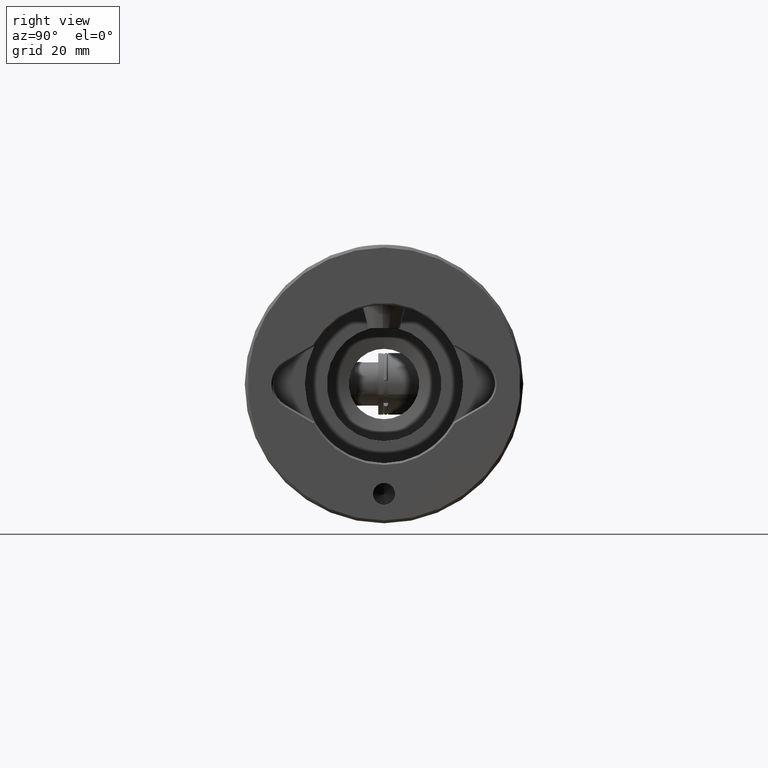
[diagram: clean part render]
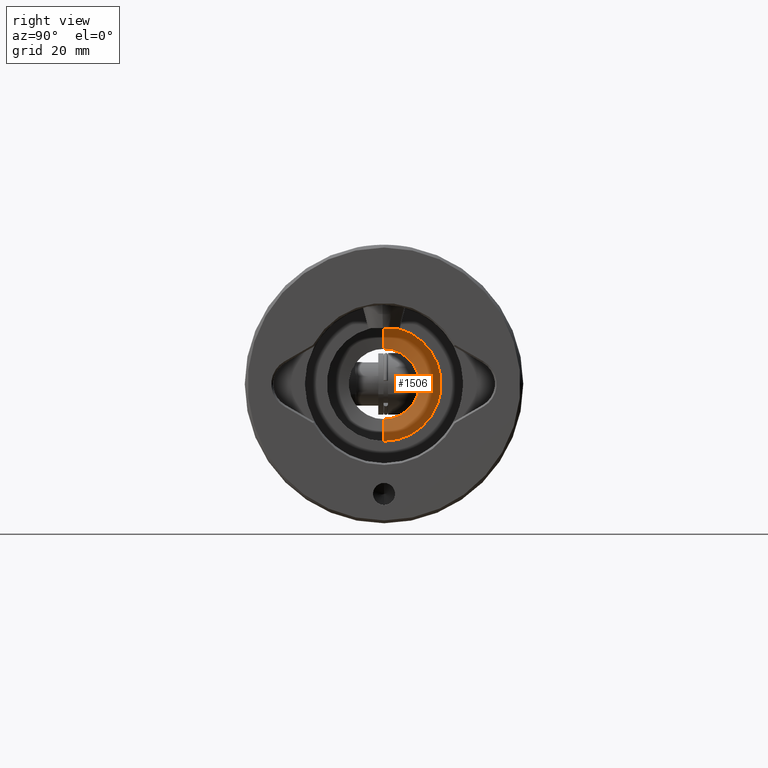
[diagram: same view with one face highlighted and labeled with its STEP entity id]
A machine part, right view. The second image highlights one B-rep face of the part: STEP entity #1506.
In plain terms, the highlighted conical surface has half-angle 77 deg.
Its self-contained STEP definition (entity closure, byte-faithful):
#104 = DIRECTION ( 'NONE',  ( -0.9743700647852351300, 0.0000000000000000000, -0.2249510543438648900 ) ) ;
#110 = DIRECTION ( 'NONE',  ( 0.0000000000000000000, 0.0000000000000000000, -1.000000000000000000 ) ) ;
#192 = DIRECTION ( 'NONE',  ( 0.0000000000000000000, 0.0000000000000000000, -1.000000000000000000 ) ) ;
#472 = CARTESIAN_POINT ( 'NONE',  ( -12.99999999999998400, 0.0000000000000000000, 75.00000000000000000 ) ) ;
#477 = CARTESIAN_POINT ( 'NONE',  ( 0.0000000000000000000, 0.0000000000000000000, 76.15434095562781600 ) ) ;
#548 = ORIENTED_EDGE ( 'NONE', *, *, #3274, .T. ) ;
#616 = ORIENTED_EDGE ( 'NONE', *, *, #3835, .F. ) ;
#638 = DIRECTION ( 'NONE',  ( -1.000000000000000000, 0.0000000000000000000, 0.0000000000000000000 ) ) ;
#740 = VERTEX_POINT ( 'NONE', #2196 ) ;
#1051 = VERTEX_POINT ( 'NONE', #1207 ) ;
#1207 = CARTESIAN_POINT ( 'NONE',  ( -12.99999999999998400, 0.0000000000000000000, 75.00000000000000000 ) ) ;
#1275 = DIRECTION ( 'NONE',  ( -1.000000000000000000, 0.0000000000000000000, 0.0000000000000000000 ) ) ;
#1436 = CARTESIAN_POINT ( 'NONE',  ( 12.99999999999998400, 1.592040838891557100E-015, 75.00000000000000000 ) ) ;
#1506 = ADVANCED_FACE ( 'NONE', ( #4571 ), #4391, .F. ) ;
#1671 = DIRECTION ( 'NONE',  ( 0.0000000000000000000, 0.0000000000000000000, -1.000000000000000000 ) ) ;
#1918 = ORIENTED_EDGE ( 'NONE', *, *, #3097, .F. ) ;
#1945 = AXIS2_PLACEMENT_3D ( 'NONE', #3156, #1671, #3142 ) ;
#2096 = EDGE_LOOP ( 'NONE', ( #1918, #616, #2142, #548 ) ) ;
#2142 = ORIENTED_EDGE ( 'NONE', *, *, #2154, .T. ) ;
#2154 = EDGE_CURVE ( 'NONE', #2856, #1051, #4322, .T. ) ;
#2196 = CARTESIAN_POINT ( 'NONE',  ( 12.99999999999998400, 1.592040838891557100E-015, 75.00000000000000000 ) ) ;
#2285 = VECTOR ( 'NONE', #104, 1000.000000000000100 ) ;
#2393 = VECTOR ( 'NONE', #4104, 1000.000000000000100 ) ;
#2683 = AXIS2_PLACEMENT_3D ( 'NONE', #2938, #192, #638 ) ;
#2856 = VERTEX_POINT ( 'NONE', #4723 ) ;
#2938 = CARTESIAN_POINT ( 'NONE',  ( 0.0000000000000000000, 0.0000000000000000000, 75.00000000000000000 ) ) ;
#3097 = EDGE_CURVE ( 'NONE', #4742, #740, #3518, .T. ) ;
#3142 = DIRECTION ( 'NONE',  ( -1.000000000000000000, 0.0000000000000000000, 0.0000000000000000000 ) ) ;
#3156 = CARTESIAN_POINT ( 'NONE',  ( 0.0000000000000000000, 0.0000000000000000000, 75.00000000000000000 ) ) ;
#3240 = CARTESIAN_POINT ( 'NONE',  ( 7.999999999999976000, 0.0000000000000000000, 76.15434095562781600 ) ) ;
#3274 = EDGE_CURVE ( 'NONE', #1051, #740, #4420, .T. ) ;
#3518 = LINE ( 'NONE', #1436, #2393 ) ;
#3835 = EDGE_CURVE ( 'NONE', #2856, #4742, #4465, .T. ) ;
#3866 = AXIS2_PLACEMENT_3D ( 'NONE', #477, #110, #1275 ) ;
#4104 = DIRECTION ( 'NONE',  ( 0.9743700647852351300, 1.193259181024237200E-016, -0.2249510543438648900 ) ) ;
#4322 = LINE ( 'NONE', #472, #2285 ) ;
#4391 = CONICAL_SURFACE ( 'NONE', #2683, 12.99999999999998400, 1.343903524035633800 ) ;
#4420 = CIRCLE ( 'NONE', #1945, 12.99999999999998400 ) ;
#4465 = CIRCLE ( 'NONE', #3866, 7.999999999999976000 ) ;
#4571 = FACE_OUTER_BOUND ( 'NONE', #2096, .T. ) ;
#4723 = CARTESIAN_POINT ( 'NONE',  ( -7.999999999999976000, 9.797174393178796100E-016, 76.15434095562781600 ) ) ;
#4742 = VERTEX_POINT ( 'NONE', #3240 ) ;